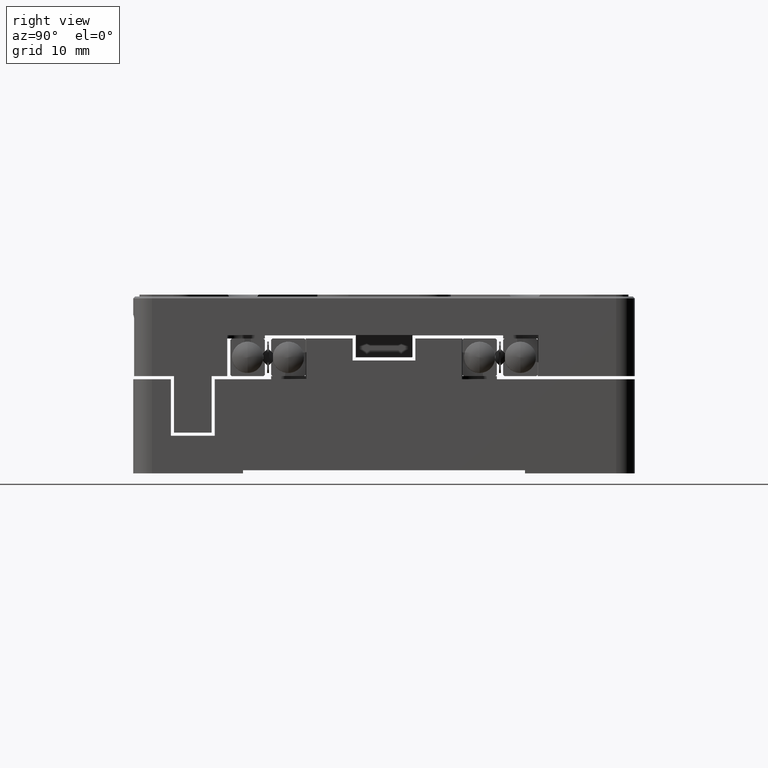
[diagram: clean part render]
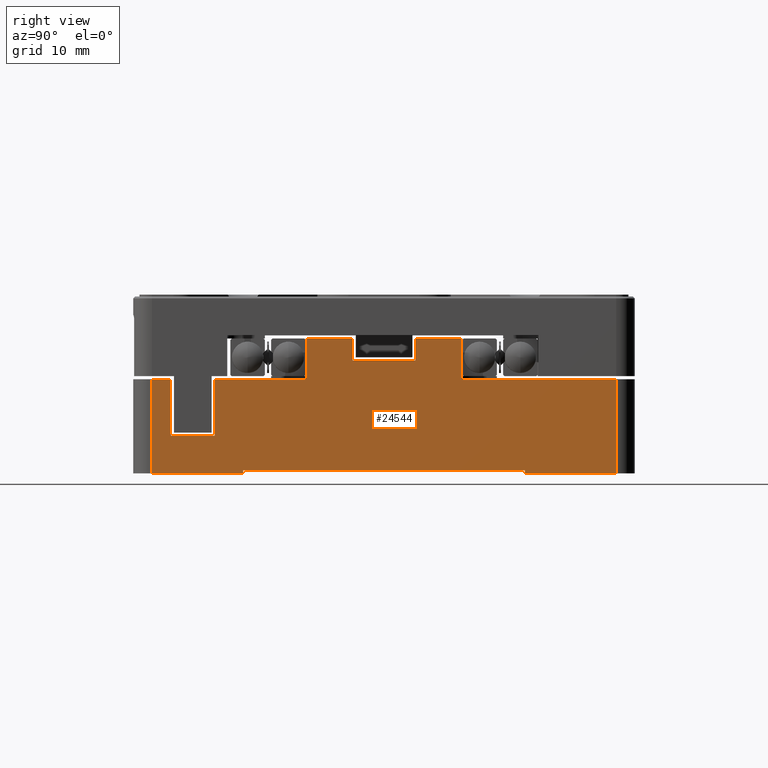
[diagram: same view with one face highlighted and labeled with its STEP entity id]
A machine part, right view. The second image highlights one B-rep face of the part: STEP entity #24544.
In plain terms, the highlighted planar face has unit normal (1, 0, 0).
Its self-contained STEP definition (entity closure, byte-faithful):
#141 = VERTEX_POINT ( 'NONE', #673 ) ;
#294 = ORIENTED_EDGE ( 'NONE', *, *, #17537, .T. ) ;
#354 = VECTOR ( 'NONE', #26016, 1000.000000000000000 ) ;
#490 = VERTEX_POINT ( 'NONE', #2395 ) ;
#673 = CARTESIAN_POINT ( 'NONE',  ( 40.00000000000000000, -22.50000000000000000, -15.00000000000000000 ) ) ;
#923 = CARTESIAN_POINT ( 'NONE',  ( 40.00000000000000000, 5.000000000000000000, 6.500000000000000000 ) ) ;
#954 = EDGE_CURVE ( 'NONE', #15107, #4880, #11734, .T. ) ;
#1099 = ORIENTED_EDGE ( 'NONE', *, *, #12205, .T. ) ;
#1120 = LINE ( 'NONE', #10067, #17639 ) ;
#1343 = VECTOR ( 'NONE', #19636, 1000.000000000000000 ) ;
#1415 = EDGE_CURVE ( 'NONE', #5773, #24092, #18689, .T. ) ;
#1515 = EDGE_CURVE ( 'NONE', #13414, #15121, #4290, .T. ) ;
#1578 = CARTESIAN_POINT ( 'NONE',  ( 40.00000000000000000, -12.40000000000000036, 6.500000000000000000 ) ) ;
#1860 = VERTEX_POINT ( 'NONE', #14245 ) ;
#2033 = ORIENTED_EDGE ( 'NONE', *, *, #18324, .T. ) ;
#2208 = PLANE ( 'NONE',  #28397 ) ;
#2395 = CARTESIAN_POINT ( 'NONE',  ( 40.00000000000000000, -34.00000000000000000, 0.000000000000000000 ) ) ;
#2699 = VECTOR ( 'NONE', #3879, 1000.000000000000000 ) ;
#3000 = DIRECTION ( 'NONE',  ( 0.000000000000000000, 0.000000000000000000, -1.000000000000000000 ) ) ;
#3004 = CARTESIAN_POINT ( 'NONE',  ( 40.00000000000000000, -5.000000000000000000, 3.000000000000000000 ) ) ;
#3284 = ORIENTED_EDGE ( 'NONE', *, *, #954, .T. ) ;
#3567 = CARTESIAN_POINT ( 'NONE',  ( 40.00000000000000000, 0.000000000000000000, 3.000000000000000000 ) ) ;
#3666 = EDGE_CURVE ( 'NONE', #22063, #490, #14075, .T. ) ;
#3783 = LINE ( 'NONE', #10515, #1343 ) ;
#3870 = ORIENTED_EDGE ( 'NONE', *, *, #6957, .T. ) ;
#3879 = DIRECTION ( 'NONE',  ( 0.000000000000000000, 0.000000000000000000, 1.000000000000000000 ) ) ;
#3943 = CARTESIAN_POINT ( 'NONE',  ( 40.00000000000000000, 0.000000000000000000, -14.50000000000000000 ) ) ;
#4290 = LINE ( 'NONE', #24109, #354 ) ;
#4310 = CARTESIAN_POINT ( 'NONE',  ( 40.00000000000000000, -37.00000000000000000, -15.00000000000000000 ) ) ;
#4458 = VECTOR ( 'NONE', #15272, 1000.000000000000000 ) ;
#4749 = CARTESIAN_POINT ( 'NONE',  ( 40.00000000000000000, 37.00000000000000000, 0.000000000000000000 ) ) ;
#4857 = ORIENTED_EDGE ( 'NONE', *, *, #1415, .T. ) ;
#4880 = VERTEX_POINT ( 'NONE', #14518 ) ;
#5167 = ORIENTED_EDGE ( 'NONE', *, *, #26057, .T. ) ;
#5250 = LINE ( 'NONE', #21112, #18435 ) ;
#5773 = VERTEX_POINT ( 'NONE', #18088 ) ;
#5900 = VECTOR ( 'NONE', #11261, 1000.000000000000000 ) ;
#6140 = EDGE_CURVE ( 'NONE', #25604, #15257, #24494, .T. ) ;
#6581 = CARTESIAN_POINT ( 'NONE',  ( 40.00000000000000000, 0.000000000000000000, -15.00000000000000000 ) ) ;
#6781 = ORIENTED_EDGE ( 'NONE', *, *, #6140, .T. ) ;
#6957 = EDGE_CURVE ( 'NONE', #4880, #15503, #21501, .T. ) ;
#7119 = VERTEX_POINT ( 'NONE', #15611 ) ;
#7410 = CARTESIAN_POINT ( 'NONE',  ( 40.00000000000000000, 22.50000000000000000, -15.00000000000000000 ) ) ;
#7544 = ORIENTED_EDGE ( 'NONE', *, *, #3666, .T. ) ;
#7753 = ORIENTED_EDGE ( 'NONE', *, *, #16041, .T. ) ;
#7835 = VECTOR ( 'NONE', #22994, 1000.000000000000000 ) ;
#8258 = ORIENTED_EDGE ( 'NONE', *, *, #25207, .T. ) ;
#8659 = CARTESIAN_POINT ( 'NONE',  ( 40.00000000000000000, -12.40000000000000036, 0.000000000000000000 ) ) ;
#8765 = LINE ( 'NONE', #6581, #5900 ) ;
#9162 = LINE ( 'NONE', #7410, #22324 ) ;
#9202 = ORIENTED_EDGE ( 'NONE', *, *, #27731, .T. ) ;
#9334 = DIRECTION ( 'NONE',  ( 0.000000000000000000, 0.000000000000000000, -1.000000000000000000 ) ) ;
#9579 = CARTESIAN_POINT ( 'NONE',  ( 40.00000000000000000, 22.50000000000000000, -14.50000000000000000 ) ) ;
#9638 = DIRECTION ( 'NONE',  ( 0.000000000000000000, 1.000000000000000000, 0.000000000000000000 ) ) ;
#9983 = VERTEX_POINT ( 'NONE', #4749 ) ;
#10014 = CARTESIAN_POINT ( 'NONE',  ( 40.00000000000000000, 5.000000000000000000, 0.000000000000000000 ) ) ;
#10067 = CARTESIAN_POINT ( 'NONE',  ( 40.00000000000000000, 0.000000000000000000, -15.00000000000000000 ) ) ;
#10515 = CARTESIAN_POINT ( 'NONE',  ( 40.00000000000000000, 0.000000000000000000, 0.000000000000000000 ) ) ;
#11261 = DIRECTION ( 'NONE',  ( 0.000000000000000000, 1.000000000000000000, 0.000000000000000000 ) ) ;
#11320 = VECTOR ( 'NONE', #15275, 1000.000000000000000 ) ;
#11463 = ORIENTED_EDGE ( 'NONE', *, *, #28470, .T. ) ;
#11734 = LINE ( 'NONE', #27467, #17144 ) ;
#11896 = CARTESIAN_POINT ( 'NONE',  ( 40.00000000000000000, -34.00000000000000000, -9.000000000000000000 ) ) ;
#12017 = DIRECTION ( 'NONE',  ( 0.000000000000000000, -1.000000000000000000, 0.000000000000000000 ) ) ;
#12044 = LINE ( 'NONE', #11896, #25132 ) ;
#12191 = CARTESIAN_POINT ( 'NONE',  ( 40.00000000000000000, 22.50000000000000000, -15.00000000000000000 ) ) ;
#12205 = EDGE_CURVE ( 'NONE', #15257, #28704, #25371, .T. ) ;
#12222 = LINE ( 'NONE', #10014, #19437 ) ;
#12420 = DIRECTION ( 'NONE',  ( 0.000000000000000000, -1.000000000000000000, 0.000000000000000000 ) ) ;
#12510 = DIRECTION ( 'NONE',  ( 0.000000000000000000, -1.000000000000000000, 0.000000000000000000 ) ) ;
#12958 = VERTEX_POINT ( 'NONE', #9579 ) ;
#13231 = ORIENTED_EDGE ( 'NONE', *, *, #20489, .T. ) ;
#13270 = CARTESIAN_POINT ( 'NONE',  ( 40.00000000000000000, -22.50000000000000000, -15.00000000000000000 ) ) ;
#13362 = DIRECTION ( 'NONE',  ( 0.000000000000000000, 1.000000000000000000, 0.000000000000000000 ) ) ;
#13370 = EDGE_CURVE ( 'NONE', #9983, #13414, #5250, .T. ) ;
#13390 = ORIENTED_EDGE ( 'NONE', *, *, #24969, .T. ) ;
#13414 = VERTEX_POINT ( 'NONE', #14508 ) ;
#13492 = LINE ( 'NONE', #8659, #4458 ) ;
#13650 = LINE ( 'NONE', #18045, #11320 ) ;
#13729 = EDGE_LOOP ( 'NONE', ( #1099, #11463, #3284, #3870, #28948, #7544, #2033, #4857, #8258, #294, #13390, #7753, #23279, #5167, #28879, #17218, #24569, #9202, #13231, #6781 ) ) ;
#13948 = CARTESIAN_POINT ( 'NONE',  ( 40.00000000000000000, -22.50000000000000000, -14.50000000000000000 ) ) ;
#14058 = VECTOR ( 'NONE', #21253, 1000.000000000000000 ) ;
#14075 = LINE ( 'NONE', #27599, #14058 ) ;
#14245 = CARTESIAN_POINT ( 'NONE',  ( 40.00000000000000000, 5.000000000000000000, 3.000000000000000000 ) ) ;
#14508 = CARTESIAN_POINT ( 'NONE',  ( 40.00000000000000000, 12.40000000000000036, 0.000000000000000000 ) ) ;
#14518 = CARTESIAN_POINT ( 'NONE',  ( 40.00000000000000000, -27.00000000000000000, 0.000000000000000000 ) ) ;
#14690 = EDGE_CURVE ( 'NONE', #15503, #22063, #12044, .T. ) ;
#15107 = VERTEX_POINT ( 'NONE', #20124 ) ;
#15121 = VERTEX_POINT ( 'NONE', #27027 ) ;
#15257 = VERTEX_POINT ( 'NONE', #26271 ) ;
#15272 = DIRECTION ( 'NONE',  ( 0.000000000000000000, 0.000000000000000000, -1.000000000000000000 ) ) ;
#15275 = DIRECTION ( 'NONE',  ( 0.000000000000000000, -1.000000000000000000, 0.000000000000000000 ) ) ;
#15503 = VERTEX_POINT ( 'NONE', #19657 ) ;
#15582 = DIRECTION ( 'NONE',  ( 1.000000000000000000, 0.000000000000000000, 0.000000000000000000 ) ) ;
#15611 = CARTESIAN_POINT ( 'NONE',  ( 40.00000000000000000, 37.00000000000000000, -15.00000000000000000 ) ) ;
#16041 = EDGE_CURVE ( 'NONE', #12958, #21804, #9162, .T. ) ;
#16766 = CARTESIAN_POINT ( 'NONE',  ( 40.00000000000000000, -37.00000000000000000, 0.000000000000000000 ) ) ;
#17144 = VECTOR ( 'NONE', #12017, 1000.000000000000000 ) ;
#17218 = ORIENTED_EDGE ( 'NONE', *, *, #1515, .T. ) ;
#17537 = EDGE_CURVE ( 'NONE', #141, #24594, #21935, .T. ) ;
#17639 = VECTOR ( 'NONE', #9638, 1000.000000000000000 ) ;
#17735 = CARTESIAN_POINT ( 'NONE',  ( 40.00000000000000000, -5.000000000000000000, 0.000000000000000000 ) ) ;
#18045 = CARTESIAN_POINT ( 'NONE',  ( 40.00000000000000000, 0.000000000000000000, 6.500000000000000000 ) ) ;
#18088 = CARTESIAN_POINT ( 'NONE',  ( 40.00000000000000000, -37.00000000000000000, 0.000000000000000000 ) ) ;
#18209 = FACE_OUTER_BOUND ( 'NONE', #13729, .T. ) ;
#18324 = EDGE_CURVE ( 'NONE', #490, #5773, #3783, .T. ) ;
#18435 = VECTOR ( 'NONE', #12420, 1000.000000000000000 ) ;
#18689 = LINE ( 'NONE', #16766, #26331 ) ;
#19042 = CARTESIAN_POINT ( 'NONE',  ( 40.00000000000000000, 0.000000000000000000, 6.500000000000000000 ) ) ;
#19437 = VECTOR ( 'NONE', #9334, 1000.000000000000000 ) ;
#19583 = CARTESIAN_POINT ( 'NONE',  ( 40.00000000000000000, -27.00000000000000000, -9.000000000000000000 ) ) ;
#19636 = DIRECTION ( 'NONE',  ( 0.000000000000000000, -1.000000000000000000, 0.000000000000000000 ) ) ;
#19657 = CARTESIAN_POINT ( 'NONE',  ( 40.00000000000000000, -27.00000000000000000, -9.000000000000000000 ) ) ;
#20124 = CARTESIAN_POINT ( 'NONE',  ( 40.00000000000000000, -12.40000000000000036, 0.000000000000000000 ) ) ;
#20489 = EDGE_CURVE ( 'NONE', #1860, #25604, #24120, .T. ) ;
#20778 = LINE ( 'NONE', #27409, #7835 ) ;
#20964 = EDGE_CURVE ( 'NONE', #15121, #27784, #13650, .T. ) ;
#21107 = DIRECTION ( 'NONE',  ( 0.000000000000000000, -1.000000000000000000, 0.000000000000000000 ) ) ;
#21112 = CARTESIAN_POINT ( 'NONE',  ( 40.00000000000000000, 0.000000000000000000, 0.000000000000000000 ) ) ;
#21253 = DIRECTION ( 'NONE',  ( 0.000000000000000000, 0.000000000000000000, 1.000000000000000000 ) ) ;
#21501 = LINE ( 'NONE', #19583, #23845 ) ;
#21710 = DIRECTION ( 'NONE',  ( 0.000000000000000000, 1.000000000000000000, 0.000000000000000000 ) ) ;
#21804 = VERTEX_POINT ( 'NONE', #12191 ) ;
#21935 = LINE ( 'NONE', #13270, #2699 ) ;
#22063 = VERTEX_POINT ( 'NONE', #24922 ) ;
#22324 = VECTOR ( 'NONE', #3000, 1000.000000000000000 ) ;
#22994 = DIRECTION ( 'NONE',  ( 0.000000000000000000, 0.000000000000000000, 1.000000000000000000 ) ) ;
#23279 = ORIENTED_EDGE ( 'NONE', *, *, #28875, .T. ) ;
#23491 = VECTOR ( 'NONE', #12510, 1000.000000000000000 ) ;
#23523 = VECTOR ( 'NONE', #21107, 1000.000000000000000 ) ;
#23704 = VECTOR ( 'NONE', #21710, 1000.000000000000000 ) ;
#23845 = VECTOR ( 'NONE', #26200, 1000.000000000000000 ) ;
#24060 = DIRECTION ( 'NONE',  ( 0.000000000000000000, 0.000000000000000000, 1.000000000000000000 ) ) ;
#24092 = VERTEX_POINT ( 'NONE', #4310 ) ;
#24109 = CARTESIAN_POINT ( 'NONE',  ( 40.00000000000000000, 12.40000000000000036, 0.000000000000000000 ) ) ;
#24120 = LINE ( 'NONE', #3567, #23491 ) ;
#24494 = LINE ( 'NONE', #17735, #27170 ) ;
#24544 = ADVANCED_FACE ( 'NONE', ( #18209 ), #2208, .T. ) ;
#24569 = ORIENTED_EDGE ( 'NONE', *, *, #20964, .T. ) ;
#24594 = VERTEX_POINT ( 'NONE', #13948 ) ;
#24677 = CARTESIAN_POINT ( 'NONE',  ( 40.00000000000000000, 0.000000000000000000, 0.000000000000000000 ) ) ;
#24922 = CARTESIAN_POINT ( 'NONE',  ( 40.00000000000000000, -34.00000000000000000, -9.000000000000000000 ) ) ;
#24969 = EDGE_CURVE ( 'NONE', #24594, #12958, #26564, .T. ) ;
#25132 = VECTOR ( 'NONE', #27794, 1000.000000000000000 ) ;
#25207 = EDGE_CURVE ( 'NONE', #24092, #141, #1120, .T. ) ;
#25371 = LINE ( 'NONE', #19042, #23523 ) ;
#25604 = VERTEX_POINT ( 'NONE', #3004 ) ;
#26016 = DIRECTION ( 'NONE',  ( 0.000000000000000000, 0.000000000000000000, 1.000000000000000000 ) ) ;
#26057 = EDGE_CURVE ( 'NONE', #7119, #9983, #20778, .T. ) ;
#26200 = DIRECTION ( 'NONE',  ( 0.000000000000000000, 0.000000000000000000, -1.000000000000000000 ) ) ;
#26271 = CARTESIAN_POINT ( 'NONE',  ( 40.00000000000000000, -5.000000000000000000, 6.500000000000000000 ) ) ;
#26331 = VECTOR ( 'NONE', #27811, 1000.000000000000000 ) ;
#26564 = LINE ( 'NONE', #3943, #23704 ) ;
#27027 = CARTESIAN_POINT ( 'NONE',  ( 40.00000000000000000, 12.40000000000000036, 6.500000000000000000 ) ) ;
#27170 = VECTOR ( 'NONE', #24060, 1000.000000000000000 ) ;
#27409 = CARTESIAN_POINT ( 'NONE',  ( 40.00000000000000000, 37.00000000000000000, 0.000000000000000000 ) ) ;
#27467 = CARTESIAN_POINT ( 'NONE',  ( 40.00000000000000000, 0.000000000000000000, 0.000000000000000000 ) ) ;
#27599 = CARTESIAN_POINT ( 'NONE',  ( 40.00000000000000000, -34.00000000000000000, 0.000000000000000000 ) ) ;
#27731 = EDGE_CURVE ( 'NONE', #27784, #1860, #12222, .T. ) ;
#27784 = VERTEX_POINT ( 'NONE', #923 ) ;
#27794 = DIRECTION ( 'NONE',  ( 0.000000000000000000, -1.000000000000000000, 0.000000000000000000 ) ) ;
#27811 = DIRECTION ( 'NONE',  ( 0.000000000000000000, 0.000000000000000000, -1.000000000000000000 ) ) ;
#28397 = AXIS2_PLACEMENT_3D ( 'NONE', #24677, #15582, #13362 ) ;
#28470 = EDGE_CURVE ( 'NONE', #28704, #15107, #13492, .T. ) ;
#28704 = VERTEX_POINT ( 'NONE', #1578 ) ;
#28875 = EDGE_CURVE ( 'NONE', #21804, #7119, #8765, .T. ) ;
#28879 = ORIENTED_EDGE ( 'NONE', *, *, #13370, .T. ) ;
#28948 = ORIENTED_EDGE ( 'NONE', *, *, #14690, .T. ) ;